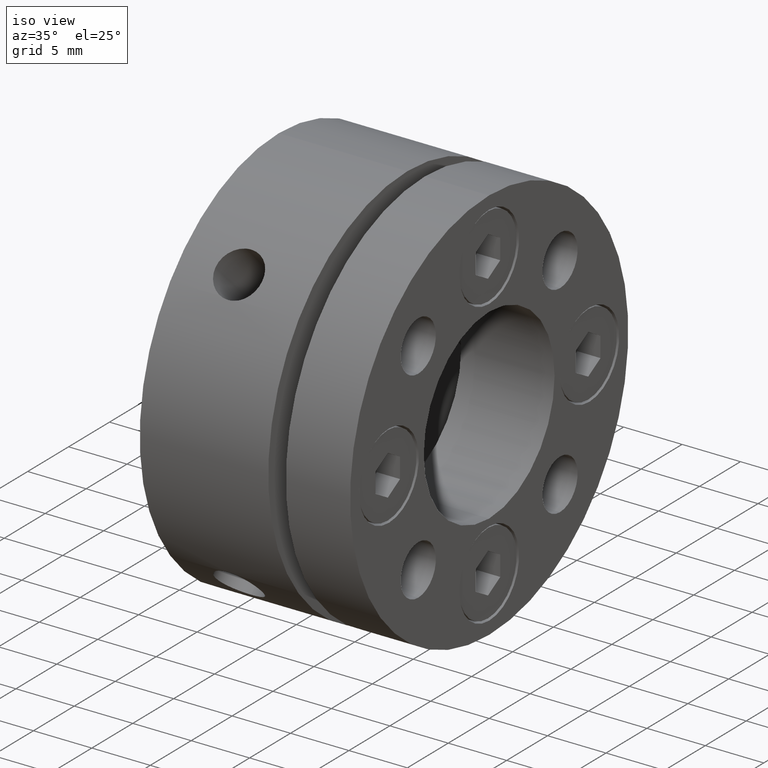
[diagram: clean part render]
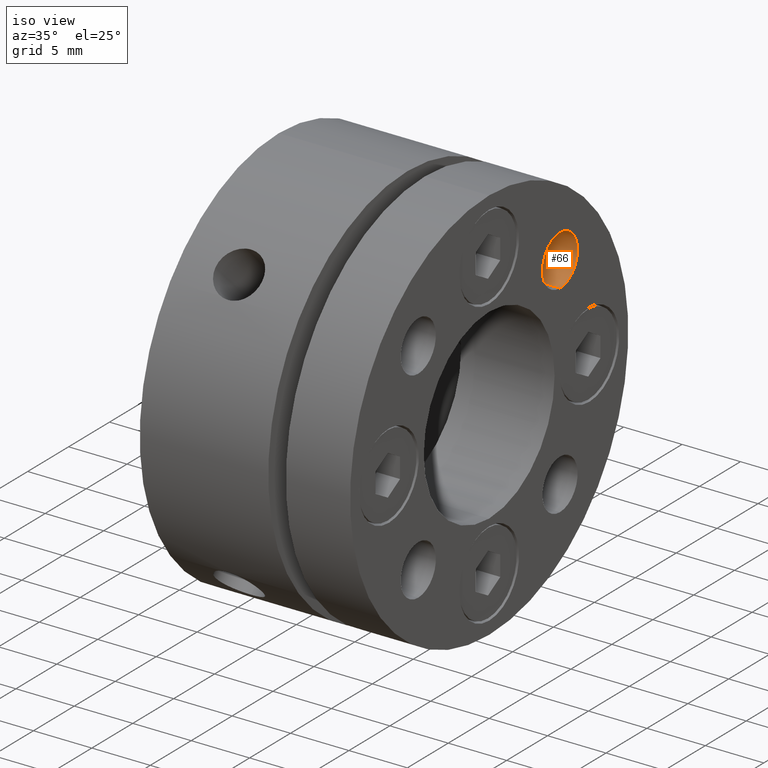
[diagram: same view with one face highlighted and labeled with its STEP entity id]
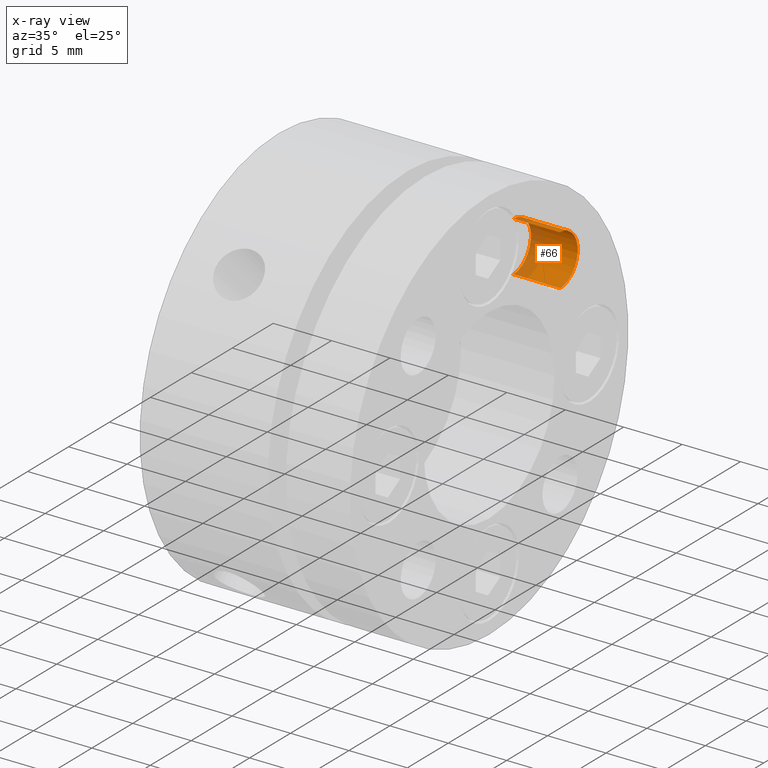
[diagram: x-ray of the same camera — body ghosted, the highlighted face saturated]
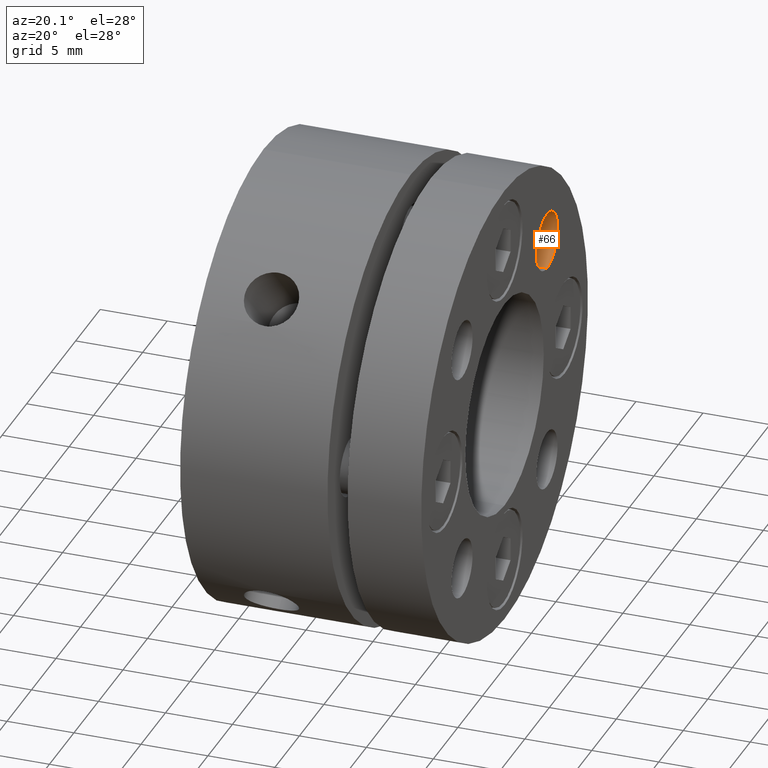
[diagram: same view with one face highlighted and labeled with its STEP entity id]
A machine part, iso view. The second image highlights one B-rep face of the part: STEP entity #66.
The next image is the same camera in x-ray: the body ghosted, the highlighted face saturated — about 28% of this face is hidden behind the body in this view.
A second angle (auxiliary view) of the same face is appended — the face is thin or edge-on in the first view.
In plain terms, the highlighted cylindrical surface (edge-blend (fillet) strip) has radius 2.15 mm, axis along (1, 0, 0).
Its self-contained STEP definition (entity closure, byte-faithful):
#66 = ADVANCED_FACE ( 'NONE', ( #239 ), #250, .F. ) ;
#239 = FACE_OUTER_BOUND ( 'NONE', #2564, .T. ) ;
#250 = CYLINDRICAL_SURFACE ( 'NONE', #720, 2.149999999999999900 ) ;
#453 = AXIS2_PLACEMENT_3D ( 'NONE', #1728, #1729, #1730 ) ;
#543 = AXIS2_PLACEMENT_3D ( 'NONE', #1716, #1717, #1718 ) ;
#720 = AXIS2_PLACEMENT_3D ( 'NONE', #2934, #2932, #2930 ) ;
#947 = LINE ( 'NONE', #1691, #951 ) ;
#950 = LINE ( 'NONE', #1698, #954 ) ;
#951 = VECTOR ( 'NONE', #1690, 1000.000000000000000 ) ;
#954 = VECTOR ( 'NONE', #1695, 1000.000000000000000 ) ;
#968 = CIRCLE ( 'NONE', #543, 2.149999999999999900 ) ;
#973 = CIRCLE ( 'NONE', #453, 2.149999999999999900 ) ;
#1389 = EDGE_CURVE ( 'NONE', #2677, #2687, #947, .T. ) ;
#1391 = EDGE_CURVE ( 'NONE', #2658, #2746, #950, .T. ) ;
#1400 = EDGE_CURVE ( 'NONE', #2658, #2677, #968, .T. ) ;
#1404 = EDGE_CURVE ( 'NONE', #2687, #2746, #973, .T. ) ;
#1690 = DIRECTION ( 'NONE',  ( 1.000000000000000000, 0.0000000000000000000, 0.0000000000000000000 ) ) ;
#1691 = CARTESIAN_POINT ( 'NONE',  ( 15.99999999999999600, 8.662058069535209600, 10.81205806953520600 ) ) ;
#1695 = DIRECTION ( 'NONE',  ( 1.000000000000000000, 0.0000000000000000000, 0.0000000000000000000 ) ) ;
#1698 = CARTESIAN_POINT ( 'NONE',  ( 15.99999999999999600, 8.662058069535209600, 6.512058069535205700 ) ) ;
#1716 = CARTESIAN_POINT ( 'NONE',  ( 14.00000000000000000, 8.662058069535209600, 8.662058069535206100 ) ) ;
#1717 = DIRECTION ( 'NONE',  ( 1.000000000000000000, 0.0000000000000000000, 0.0000000000000000000 ) ) ;
#1718 = DIRECTION ( 'NONE',  ( 0.0000000000000000000, 0.0000000000000000000, -1.000000000000000000 ) ) ;
#1728 = CARTESIAN_POINT ( 'NONE',  ( 18.00000000000000400, 8.662058069535209600, 8.662058069535206100 ) ) ;
#1729 = DIRECTION ( 'NONE',  ( -1.000000000000000000, -0.0000000000000000000, -0.0000000000000000000 ) ) ;
#1730 = DIRECTION ( 'NONE',  ( 0.0000000000000000000, 0.0000000000000000000, -1.000000000000000000 ) ) ;
#1915 = CARTESIAN_POINT ( 'NONE',  ( 14.00000000000000000, 8.662058069535209600, 6.512058072317057800 ) ) ;
#1960 = CARTESIAN_POINT ( 'NONE',  ( 14.00000000000000000, 8.662058069535209600, 10.81205806675335300 ) ) ;
#1970 = CARTESIAN_POINT ( 'NONE',  ( 18.00000000000000400, 8.662058069535209600, 10.81205806953520600 ) ) ;
#2029 = CARTESIAN_POINT ( 'NONE',  ( 18.00000000000000400, 8.662058069535209600, 6.512058069535205700 ) ) ;
#2392 = ORIENTED_EDGE ( 'NONE', *, *, #1391, .T. ) ;
#2397 = ORIENTED_EDGE ( 'NONE', *, *, #1404, .F. ) ;
#2422 = ORIENTED_EDGE ( 'NONE', *, *, #1400, .F. ) ;
#2423 = ORIENTED_EDGE ( 'NONE', *, *, #1389, .F. ) ;
#2564 = EDGE_LOOP ( 'NONE', ( #2423, #2422, #2392, #2397 ) ) ;
#2658 = VERTEX_POINT ( 'NONE', #1915 ) ;
#2677 = VERTEX_POINT ( 'NONE', #1960 ) ;
#2687 = VERTEX_POINT ( 'NONE', #1970 ) ;
#2746 = VERTEX_POINT ( 'NONE', #2029 ) ;
#2930 = DIRECTION ( 'NONE',  ( 0.0000000000000000000, 0.0000000000000000000, -1.000000000000000000 ) ) ;
#2932 = DIRECTION ( 'NONE',  ( 1.000000000000000000, 0.0000000000000000000, 0.0000000000000000000 ) ) ;
#2934 = CARTESIAN_POINT ( 'NONE',  ( 15.99999999999999600, 8.662058069535209600, 8.662058069535206100 ) ) ;